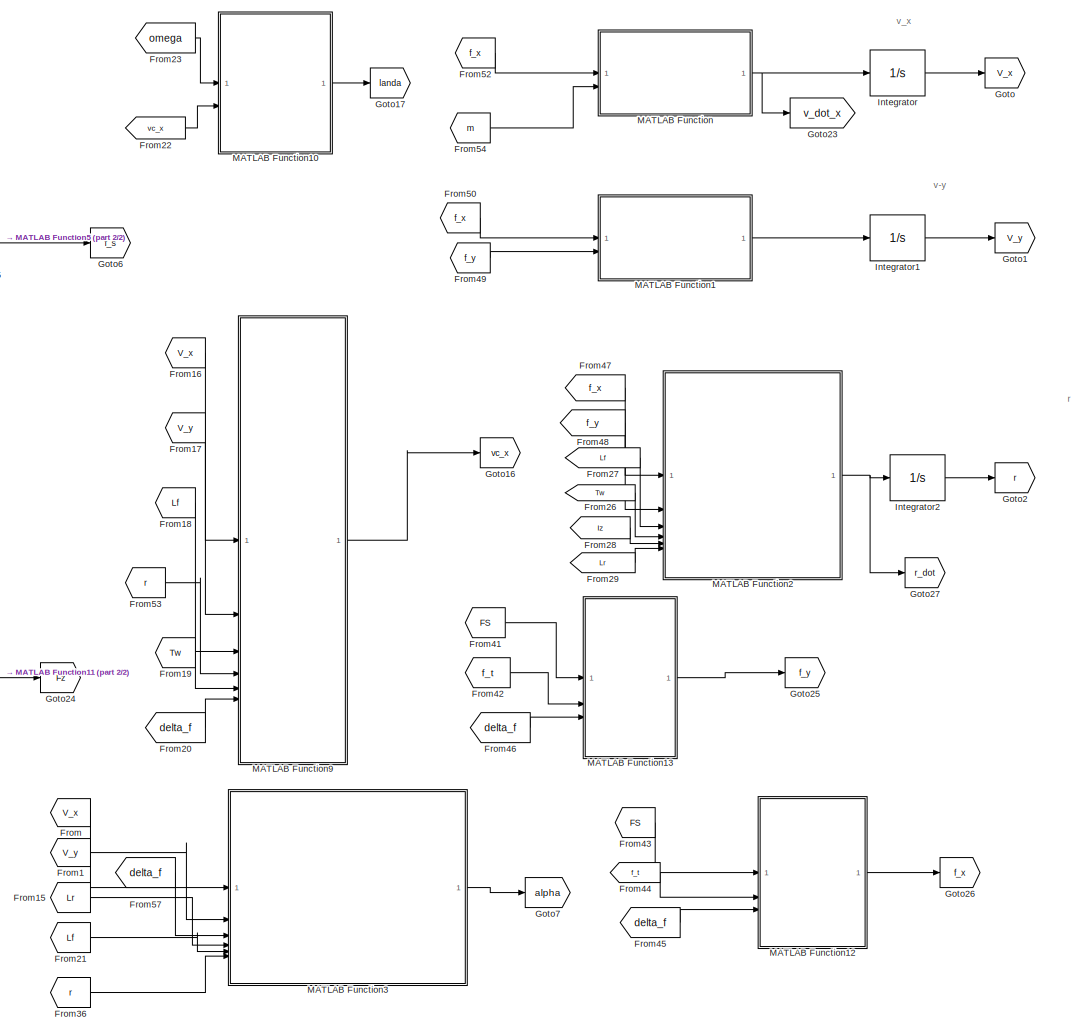
[diagram: root canvas - part 1/2, right side, full height]
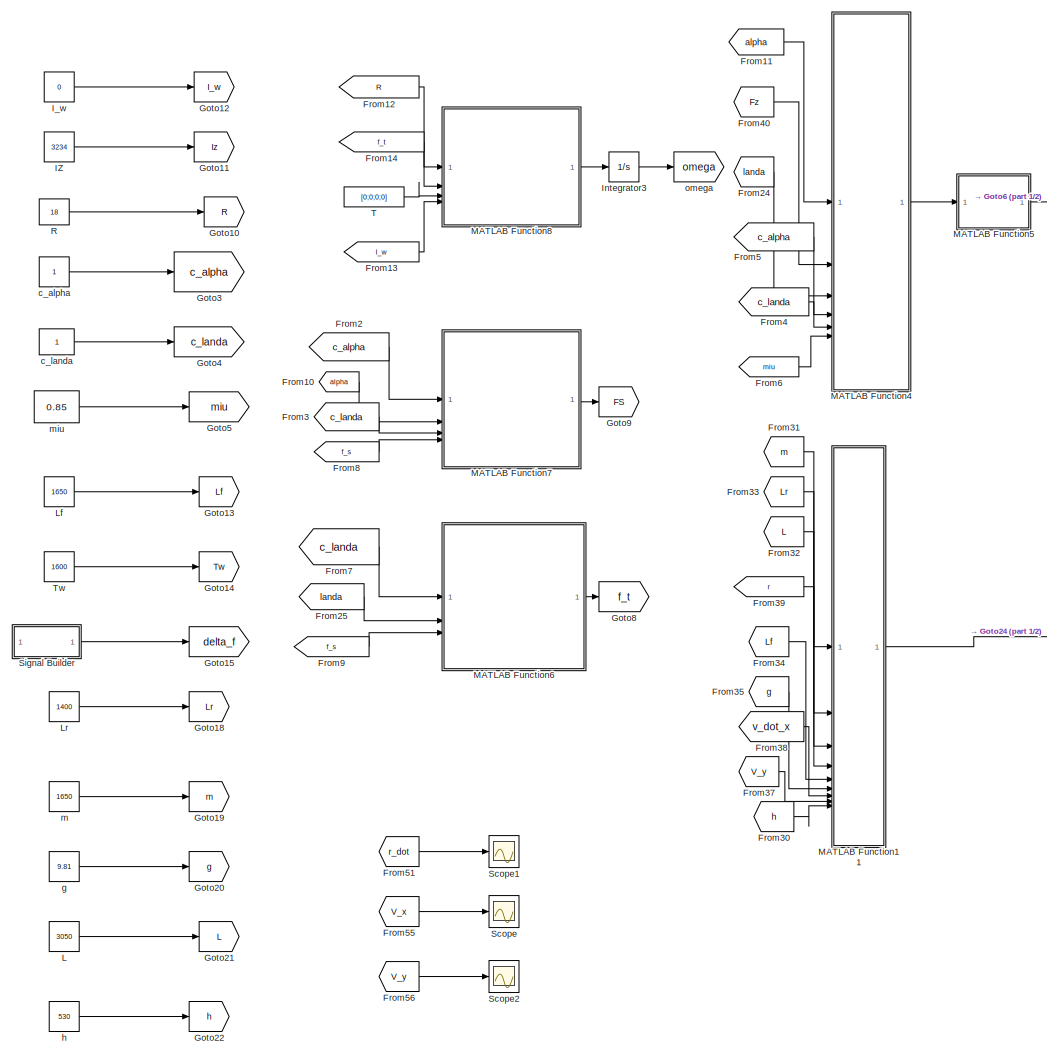
[diagram: root canvas - part 2/2, left side, full height]
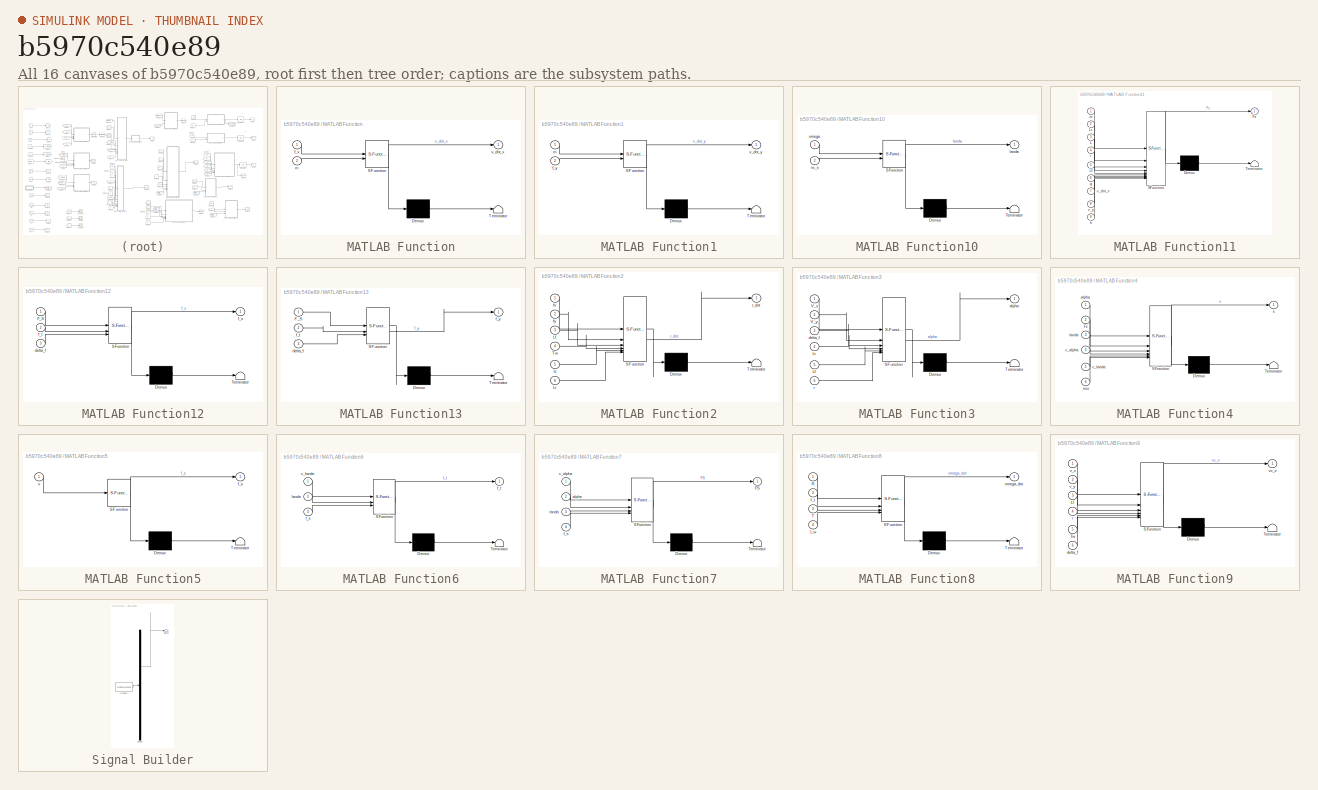
[diagram: thumbnail index - all 16 canvases of the model, root first then tree order]
MODEL slx_b5970c540e89
KIND model
CONFIG AbsTol = auto
CONFIG EnableMultiTasking = off
CONFIG FixedStep = auto
CONFIG MaxStep = auto
CONFIG MinStep = auto
CONFIG RelTol = 1e-3
CONFIG SampleTimeConstraint = Unconstrained
CONFIG SolverName = VariableStepAuto
CONFIG StartTime = 0.0
CONFIG StopTime = 10.0
BLOCK [From] From
  GotoTag = V_x
BLOCK [From] From1
  GotoTag = V_y
BLOCK [From] From10
  GotoTag = alpha
BLOCK [From] From11
  GotoTag = alpha
BLOCK [From] From12
  GotoTag = R
BLOCK [From] From13
  GotoTag = I_w
BLOCK [From] From14
  GotoTag = f_t
BLOCK [From] From15
  GotoTag = Lr
BLOCK [From] From16
  GotoTag = V_x
BLOCK [From] From17
  GotoTag = V_y
BLOCK [From] From18
  GotoTag = Lf
BLOCK [From] From19
  GotoTag = Tw
BLOCK [From] From2
  GotoTag = c_alpha
BLOCK [From] From20
  GotoTag = delta_f
BLOCK [From] From21
  GotoTag = Lf
BLOCK [From] From22
  GotoTag = vc_x
BLOCK [From] From23
  GotoTag = omega
BLOCK [From] From24
  GotoTag = landa
BLOCK [From] From25
  GotoTag = landa
BLOCK [From] From26
  GotoTag = Tw
BLOCK [From] From27
  GotoTag = Lf
BLOCK [From] From28
  GotoTag = Iz
BLOCK [From] From29
  GotoTag = Lr
BLOCK [From] From3
  GotoTag = c_landa
BLOCK [From] From30
  GotoTag = h
BLOCK [From] From31
  GotoTag = m
BLOCK [From] From32
  GotoTag = L
BLOCK [From] From33
  GotoTag = Lr
BLOCK [From] From34
  GotoTag = Lf
BLOCK [From] From35
  GotoTag = g
BLOCK [From] From36
  GotoTag = r
BLOCK [From] From37
  GotoTag = V_y
BLOCK [From] From38
  GotoTag = v_dot_x
BLOCK [From] From39
  GotoTag = r
BLOCK [From] From4
  GotoTag = c_landa
BLOCK [From] From40
  GotoTag = Fz
BLOCK [From] From41
  GotoTag = FS
BLOCK [From] From42
  GotoTag = f_t
BLOCK [From] From43
  GotoTag = FS
BLOCK [From] From44
  GotoTag = f_t
BLOCK [From] From45
  GotoTag = delta_f
BLOCK [From] From46
  GotoTag = delta_f
BLOCK [From] From47
  GotoTag = f_x
BLOCK [From] From48
  GotoTag = f_y
BLOCK [From] From49
  GotoTag = f_y
BLOCK [From] From5
  GotoTag = c_alpha
BLOCK [From] From50
  GotoTag = f_x
BLOCK [From] From51
  GotoTag = r_dot
BLOCK [From] From52
  GotoTag = f_x
BLOCK [From] From53
  GotoTag = r
BLOCK [From] From54
  GotoTag = m
BLOCK [From] From55
  GotoTag = V_x
BLOCK [From] From56
  GotoTag = V_y
BLOCK [From] From57
  GotoTag = delta_f
BLOCK [From] From6
  GotoTag = miu
BLOCK [From] From7
  GotoTag = c_landa
BLOCK [From] From8
  GotoTag = f_s
BLOCK [From] From9
  GotoTag = f_s
BLOCK [Goto] Goto
  GotoTag = V_x
BLOCK [Goto] Goto1
  GotoTag = V_y
BLOCK [Goto] Goto10
  GotoTag = R
BLOCK [Goto] Goto11
  GotoTag = Iz
BLOCK [Goto] Goto12
  GotoTag = I_w
BLOCK [Goto] Goto13
  GotoTag = Lf
BLOCK [Goto] Goto14
  GotoTag = Tw
BLOCK [Goto] Goto15
  GotoTag = delta_f
BLOCK [Goto] Goto16
  GotoTag = vc_x
BLOCK [Goto] Goto17
  GotoTag = landa
BLOCK [Goto] Goto18
  GotoTag = Lr
BLOCK [Goto] Goto19
  GotoTag = m
BLOCK [Goto] Goto2
  GotoTag = r
BLOCK [Goto] Goto20
  GotoTag = g
BLOCK [Goto] Goto21
  GotoTag = L
BLOCK [Goto] Goto22
  GotoTag = h
BLOCK [Goto] Goto23
  GotoTag = v_dot_x
BLOCK [Goto] Goto24
  GotoTag = Fz
BLOCK [Goto] Goto25
  GotoTag = f_y
BLOCK [Goto] Goto26
  GotoTag = f_x
BLOCK [Goto] Goto27
  GotoTag = r_dot
BLOCK [Goto] Goto3
  GotoTag = c_alpha
BLOCK [Goto] Goto4
  GotoTag = c_landa
BLOCK [Goto] Goto5
  GotoTag = miu
BLOCK [Goto] Goto6
  GotoTag = f_s
BLOCK [Goto] Goto7
  GotoTag = alpha
BLOCK [Goto] Goto8
  GotoTag = f_t
BLOCK [Goto] Goto9
  GotoTag = FS
BLOCK [Constant] IZ
  Value = 3234
BLOCK [Constant] I_w
  Value = 0
BLOCK [Integrator] Integrator
  InitialCondition = 70
BLOCK [Integrator] Integrator1
BLOCK [Integrator] Integrator2
  InitialCondition = 10
BLOCK [Integrator] Integrator3
  InitialCondition = [0;0;0;0]
BLOCK [Constant] L
  Value = 3050
BLOCK [Constant] Lf
  Value = 1650
BLOCK [Constant] Lr
  Value = 1400
BLOCK [SubSystem] MATLAB Function
  ErrorFcn = Stateflow.Translate.translate
  LibrarySourceBlock = simulink/User-Defined\nFunctions/MATLAB Function
  PermitHierarchicalResolution = ExplicitOnly
  SFBlockType = MATLAB Function
  TreatAsAtomicUnit = on
BLOCK [Demux] MATLAB Function/ Demux 
  Outputs = 1
BLOCK [S-Function] MATLAB Function/ SFunction 
  EnableBusSupport = on
  FunctionName = sf_sfun
  PortCounts = [2 2]
  SFcnIsStateOwnerBlock = off
  SFunctionDeploymentMode = off
  Tag = Stateflow S-Function 2
BLOCK [Terminator] MATLAB Function/ Terminator 
BLOCK [Inport] MATLAB Function/f_x
BLOCK [Inport] MATLAB Function/m
  Port = 2
BLOCK [Outport] MATLAB Function/v_dot_x
BLOCK [SubSystem] MATLAB Function1
  ErrorFcn = Stateflow.Translate.translate
  LibrarySourceBlock = simulink/User-Defined\nFunctions/MATLAB Function
  PermitHierarchicalResolution = ExplicitOnly
  SFBlockType = MATLAB Function
  TreatAsAtomicUnit = on
BLOCK [Demux] MATLAB Function1/ Demux 
  Outputs = 1
BLOCK [S-Function] MATLAB Function1/ SFunction 
  EnableBusSupport = on
  FunctionName = sf_sfun
  PortCounts = [2 2]
  SFcnIsStateOwnerBlock = off
  SFunctionDeploymentMode = off
  Tag = Stateflow S-Function 1
BLOCK [Terminator] MATLAB Function1/ Terminator 
BLOCK [Inport] MATLAB Function1/f_y
  Port = 2
BLOCK [Inport] MATLAB Function1/m
BLOCK [Outport] MATLAB Function1/v_dot_y
BLOCK [SubSystem] MATLAB Function10
  ErrorFcn = Stateflow.Translate.translate
  LibrarySourceBlock = simulink/User-Defined\nFunctions/MATLAB Function
  PermitHierarchicalResolution = ExplicitOnly
  SFBlockType = MATLAB Function
  TreatAsAtomicUnit = on
BLOCK [Demux] MATLAB Function10/ Demux 
  Outputs = 1
BLOCK [S-Function] MATLAB Function10/ SFunction 
  EnableBusSupport = on
  FunctionName = sf_sfun
  PortCounts = [2 2]
  SFcnIsStateOwnerBlock = off
  SFunctionDeploymentMode = off
  Tag = Stateflow S-Function 11
BLOCK [Terminator] MATLAB Function10/ Terminator 
BLOCK [Outport] MATLAB Function10/landa
BLOCK [Inport] MATLAB Function10/omega
BLOCK [Inport] MATLAB Function10/vc_x
  Port = 2
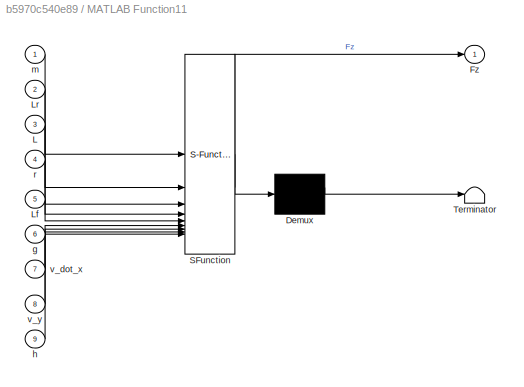
BLOCK [SubSystem] MATLAB Function11
  ErrorFcn = Stateflow.Translate.translate
  LibrarySourceBlock = simulink/User-Defined\nFunctions/MATLAB Function
  PermitHierarchicalResolution = ExplicitOnly
  SFBlockType = MATLAB Function
  TreatAsAtomicUnit = on
BLOCK [Demux] MATLAB Function11/ Demux 
  Outputs = 1
BLOCK [S-Function] MATLAB Function11/ SFunction 
  EnableBusSupport = on
  FunctionName = sf_sfun
  PortCounts = [9 2]
  SFcnIsStateOwnerBlock = off
  SFunctionDeploymentMode = off
  Tag = Stateflow S-Function 12
BLOCK [Terminator] MATLAB Function11/ Terminator 
BLOCK [Outport] MATLAB Function11/Fz
BLOCK [Inport] MATLAB Function11/L
  Port = 3
BLOCK [Inport] MATLAB Function11/Lf
  Port = 5
BLOCK [Inport] MATLAB Function11/Lr
  Port = 2
BLOCK [Inport] MATLAB Function11/g
  Port = 6
BLOCK [Inport] MATLAB Function11/h
  Port = 9
BLOCK [Inport] MATLAB Function11/m
BLOCK [Inport] MATLAB Function11/r
  Port = 4
BLOCK [Inport] MATLAB Function11/v_dot_x
  Port = 7
BLOCK [Inport] MATLAB Function11/v_y
  Port = 8
BLOCK [SubSystem] MATLAB Function12
  ErrorFcn = Stateflow.Translate.translate
  LibrarySourceBlock = simulink/User-Defined\nFunctions/MATLAB Function
  PermitHierarchicalResolution = ExplicitOnly
  SFBlockType = MATLAB Function
  TreatAsAtomicUnit = on
BLOCK [Demux] MATLAB Function12/ Demux 
  Outputs = 1
BLOCK [S-Function] MATLAB Function12/ SFunction 
  EnableBusSupport = on
  FunctionName = sf_sfun
  PortCounts = [3 2]
  SFcnIsStateOwnerBlock = off
  SFunctionDeploymentMode = off
  Tag = Stateflow S-Function 13
BLOCK [Terminator] MATLAB Function12/ Terminator 
BLOCK [Inport] MATLAB Function12/F_S
BLOCK [Inport] MATLAB Function12/delta_f
  Port = 3
BLOCK [Inport] MATLAB Function12/f_t
  Port = 2
BLOCK [Outport] MATLAB Function12/f_x
BLOCK [SubSystem] MATLAB Function13
  ErrorFcn = Stateflow.Translate.translate
  LibrarySourceBlock = simulink/User-Defined\nFunctions/MATLAB Function
  PermitHierarchicalResolution = ExplicitOnly
  SFBlockType = MATLAB Function
  TreatAsAtomicUnit = on
BLOCK [Demux] MATLAB Function13/ Demux 
  Outputs = 1
BLOCK [S-Function] MATLAB Function13/ SFunction 
  EnableBusSupport = on
  FunctionName = sf_sfun
  PortCounts = [3 2]
  SFcnIsStateOwnerBlock = off
  SFunctionDeploymentMode = off
  Tag = Stateflow S-Function 14
BLOCK [Terminator] MATLAB Function13/ Terminator 
BLOCK [Inport] MATLAB Function13/F_S
BLOCK [Inport] MATLAB Function13/delta_f
  Port = 3
BLOCK [Inport] MATLAB Function13/f_t
  Port = 2
BLOCK [Outport] MATLAB Function13/f_y
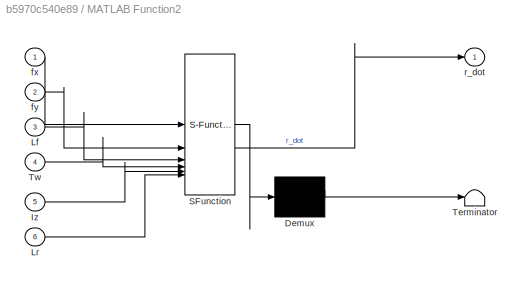
BLOCK [SubSystem] MATLAB Function2
  ErrorFcn = Stateflow.Translate.translate
  LibrarySourceBlock = simulink/User-Defined\nFunctions/MATLAB Function
  PermitHierarchicalResolution = ExplicitOnly
  SFBlockType = MATLAB Function
  TreatAsAtomicUnit = on
BLOCK [Demux] MATLAB Function2/ Demux 
  Outputs = 1
BLOCK [S-Function] MATLAB Function2/ SFunction 
  EnableBusSupport = on
  FunctionName = sf_sfun
  PortCounts = [6 2]
  SFcnIsStateOwnerBlock = off
  SFunctionDeploymentMode = off
  Tag = Stateflow S-Function 3
BLOCK [Terminator] MATLAB Function2/ Terminator 
BLOCK [Inport] MATLAB Function2/Iz
  Port = 5
BLOCK [Inport] MATLAB Function2/Lf
  Port = 3
BLOCK [Inport] MATLAB Function2/Lr
  Port = 6
BLOCK [Inport] MATLAB Function2/Tw
  Port = 4
BLOCK [Inport] MATLAB Function2/fx
BLOCK [Inport] MATLAB Function2/fy
  Port = 2
BLOCK [Outport] MATLAB Function2/r_dot
BLOCK [SubSystem] MATLAB Function3
  ErrorFcn = Stateflow.Translate.translate
  LibrarySourceBlock = simulink/User-Defined\nFunctions/MATLAB Function
  PermitHierarchicalResolution = ExplicitOnly
  SFBlockType = MATLAB Function
  TreatAsAtomicUnit = on
BLOCK [Demux] MATLAB Function3/ Demux 
  Outputs = 1
BLOCK [S-Function] MATLAB Function3/ SFunction 
  EnableBusSupport = on
  FunctionName = sf_sfun
  PortCounts = [6 2]
  SFcnIsStateOwnerBlock = off
  SFunctionDeploymentMode = off
  Tag = Stateflow S-Function 4
BLOCK [Terminator] MATLAB Function3/ Terminator 
BLOCK [Inport] MATLAB Function3/Lf
  Port = 5
BLOCK [Inport] MATLAB Function3/Lr
  Port = 4
BLOCK [Inport] MATLAB Function3/V_x
BLOCK [Inport] MATLAB Function3/V_y
  Port = 2
BLOCK [Outport] MATLAB Function3/alpha
BLOCK [Inport] MATLAB Function3/delta_f
  Port = 3
BLOCK [Inport] MATLAB Function3/r
  Port = 6
BLOCK [SubSystem] MATLAB Function4
  ErrorFcn = Stateflow.Translate.translate
  LibrarySourceBlock = simulink/User-Defined\nFunctions/MATLAB Function
  PermitHierarchicalResolution = ExplicitOnly
  SFBlockType = MATLAB Function
  TreatAsAtomicUnit = on
BLOCK [Demux] MATLAB Function4/ Demux 
  Outputs = 1
BLOCK [S-Function] MATLAB Function4/ SFunction 
  EnableBusSupport = on
  FunctionName = sf_sfun
  PortCounts = [6 2]
  SFcnIsStateOwnerBlock = off
  SFunctionDeploymentMode = off
  Tag = Stateflow S-Function 5
BLOCK [Terminator] MATLAB Function4/ Terminator 
BLOCK [Inport] MATLAB Function4/Fz
  Port = 2
BLOCK [Inport] MATLAB Function4/alpha
BLOCK [Inport] MATLAB Function4/c_alpha
  Port = 4
BLOCK [Inport] MATLAB Function4/c_landa
  Port = 5
BLOCK [Inport] MATLAB Function4/landa
  Port = 3
BLOCK [Inport] MATLAB Function4/miu
  Port = 6
BLOCK [Outport] MATLAB Function4/s
BLOCK [SubSystem] MATLAB Function5
  ErrorFcn = Stateflow.Translate.translate
  LibrarySourceBlock = simulink/User-Defined\nFunctions/MATLAB Function
  PermitHierarchicalResolution = ExplicitOnly
  SFBlockType = MATLAB Function
  TreatAsAtomicUnit = on
BLOCK [Demux] MATLAB Function5/ Demux 
  Outputs = 1
BLOCK [S-Function] MATLAB Function5/ SFunction 
  EnableBusSupport = on
  FunctionName = sf_sfun
  PortCounts = [1 2]
  SFcnIsStateOwnerBlock = off
  SFunctionDeploymentMode = off
  Tag = Stateflow S-Function 6
BLOCK [Terminator] MATLAB Function5/ Terminator 
BLOCK [Outport] MATLAB Function5/f_s
BLOCK [Inport] MATLAB Function5/s
BLOCK [SubSystem] MATLAB Function6
  ErrorFcn = Stateflow.Translate.translate
  LibrarySourceBlock = simulink/User-Defined\nFunctions/MATLAB Function
  PermitHierarchicalResolution = ExplicitOnly
  SFBlockType = MATLAB Function
  TreatAsAtomicUnit = on
BLOCK [Demux] MATLAB Function6/ Demux 
  Outputs = 1
BLOCK [S-Function] MATLAB Function6/ SFunction 
  EnableBusSupport = on
  FunctionName = sf_sfun
  PortCounts = [3 2]
  SFcnIsStateOwnerBlock = off
  SFunctionDeploymentMode = off
  Tag = Stateflow S-Function 7
BLOCK [Terminator] MATLAB Function6/ Terminator 
BLOCK [Inport] MATLAB Function6/c_landa
BLOCK [Inport] MATLAB Function6/f_s
  Port = 3
BLOCK [Outport] MATLAB Function6/f_t
BLOCK [Inport] MATLAB Function6/landa
  Port = 2
BLOCK [SubSystem] MATLAB Function7
  ErrorFcn = Stateflow.Translate.translate
  LibrarySourceBlock = simulink/User-Defined\nFunctions/MATLAB Function
  PermitHierarchicalResolution = ExplicitOnly
  SFBlockType = MATLAB Function
  TreatAsAtomicUnit = on
BLOCK [Demux] MATLAB Function7/ Demux 
  Outputs = 1
BLOCK [S-Function] MATLAB Function7/ SFunction 
  EnableBusSupport = on
  FunctionName = sf_sfun
  PortCounts = [4 2]
  SFcnIsStateOwnerBlock = off
  SFunctionDeploymentMode = off
  Tag = Stateflow S-Function 8
BLOCK [Terminator] MATLAB Function7/ Terminator 
BLOCK [Outport] MATLAB Function7/FS
BLOCK [Inport] MATLAB Function7/alpha
  Port = 2
BLOCK [Inport] MATLAB Function7/c_alpha
BLOCK [Inport] MATLAB Function7/f_s
  Port = 4
BLOCK [Inport] MATLAB Function7/landa
  Port = 3
BLOCK [SubSystem] MATLAB Function8
  ErrorFcn = Stateflow.Translate.translate
  LibrarySourceBlock = simulink/User-Defined\nFunctions/MATLAB Function
  PermitHierarchicalResolution = ExplicitOnly
  SFBlockType = MATLAB Function
  TreatAsAtomicUnit = on
BLOCK [Demux] MATLAB Function8/ Demux 
  Outputs = 1
BLOCK [S-Function] MATLAB Function8/ SFunction 
  EnableBusSupport = on
  FunctionName = sf_sfun
  PortCounts = [4 2]
  SFcnIsStateOwnerBlock = off
  SFunctionDeploymentMode = off
  Tag = Stateflow S-Function 9
BLOCK [Terminator] MATLAB Function8/ Terminator 
BLOCK [Inport] MATLAB Function8/I_w
  Port = 4
BLOCK [Inport] MATLAB Function8/R
BLOCK [Inport] MATLAB Function8/T
  Port = 3
BLOCK [Inport] MATLAB Function8/f_t
  Port = 2
BLOCK [Outport] MATLAB Function8/omega_dot
BLOCK [SubSystem] MATLAB Function9
  ErrorFcn = Stateflow.Translate.translate
  LibrarySourceBlock = simulink/User-Defined\nFunctions/MATLAB Function
  PermitHierarchicalResolution = ExplicitOnly
  SFBlockType = MATLAB Function
  TreatAsAtomicUnit = on
BLOCK [Demux] MATLAB Function9/ Demux 
  Outputs = 1
BLOCK [S-Function] MATLAB Function9/ SFunction 
  EnableBusSupport = on
  FunctionName = sf_sfun
  PortCounts = [6 2]
  SFcnIsStateOwnerBlock = off
  SFunctionDeploymentMode = off
  Tag = Stateflow S-Function 10
BLOCK [Terminator] MATLAB Function9/ Terminator 
BLOCK [Inport] MATLAB Function9/Lf
  Port = 3
BLOCK [Inport] MATLAB Function9/Tw
  Port = 5
BLOCK [Inport] MATLAB Function9/delta_f
  Port = 6
BLOCK [Inport] MATLAB Function9/r
  Port = 4
BLOCK [Inport] MATLAB Function9/v_x
BLOCK [Inport] MATLAB Function9/v_y
  Port = 2
BLOCK [Outport] MATLAB Function9/vc_x
BLOCK [Constant] R
  Value = 18
BLOCK [Scope] Scope
  Floating = off
  NumInputPorts = 1
  ScopeSpecificationString = Simulink.scopes.TimeScopeBlockCfg('CurrentConfiguration', extmgr.ConfigurationSet(extmgr.Configuration('Core','General UI',true),extmgr.Configuration('Core','Source UI',true),extmgr.Configuration('Sources','WiredSimulink',true),extmgr.Configuration('Visuals','Time Domain',true),extmgr.Configuration('Tools','Plot Navigation',true),extmgr.Configuration('Tools','Measurements',true,'Version','2022b'))...<+61ch>
BLOCK [Scope] Scope1
  Floating = off
  NumInputPorts = 1
  ScopeSpecificationString = Simulink.scopes.TimeScopeBlockCfg('CurrentConfiguration', extmgr.ConfigurationSet(extmgr.Configuration('Core','General UI',true),extmgr.Configuration('Core','Source UI',true),extmgr.Configuration('Sources','WiredSimulink',true,'DataLoggingVariableName','ScopeData1'),extmgr.Configuration('Visuals','Time Domain',true),extmgr.Configuration('Tools','Plot Navigation',true),extmgr.Configuration('Tools',...<+100ch>
BLOCK [Scope] Scope2
  Floating = off
  NumInputPorts = 1
  ScopeSpecificationString = Simulink.scopes.TimeScopeBlockCfg('CurrentConfiguration', extmgr.ConfigurationSet(extmgr.Configuration('Core','General UI',true),extmgr.Configuration('Core','Source UI',true),extmgr.Configuration('Sources','WiredSimulink',true,'DataLoggingVariableName','ScopeData2'),extmgr.Configuration('Visuals','Time Domain',true),extmgr.Configuration('Tools','Plot Navigation',true),extmgr.Configuration('Tools',...<+100ch>
BLOCK [SubSystem] Signal Builder
  ClipboardFcn = sigbuilder_block('clipboard');
  CloseFcn = sigbuilder_block('close');
  ContinueFcn = sigbuilder_block('continue');
  CopyFcn = sigbuilder_block('copy');
  DeleteFcn = sigbuilder_block('delete');
  LoadFcn = sigbuilder_block('load');
  MaskHideContents = on
  ModelCloseFcn = sigbuilder_block('modelClose');
  NameChangeFcn = sigbuilder_block('namechange');
  OpenFcn = sigbuilder_block('open',[437.6 199.2 550.4 400 ]);
  PauseFcn = sigbuilder_block('pause');
  PreSaveFcn = sigbuilder_block('preSave');
  StartFcn = sigbuilder_block('start');
  StopFcn = sigbuilder_block('stop');
  Tag = STV Subsys
BLOCK [Demux] Signal Builder/Demux
  DisplayOption = none
  Outputs = 1
  Tag = STV Demux
BLOCK [FromWorkspace] Signal Builder/FromWs
  Tag = STV FromWs
  VariableName = tuvar
BLOCK [Outport] Signal Builder/Signal 1
  Tag = STV Outport
BLOCK [Constant] T
  Value = [0;0;0;0]
BLOCK [Constant] Tw
  Value = 1600
BLOCK [Constant] c_alpha
BLOCK [Constant] c_landa
BLOCK [Constant] g
  Value = 9.81
BLOCK [Constant] h
  Value = 530
BLOCK [Constant] m
  Value = 1650
BLOCK [Constant] miu
  Value = 0.85
BLOCK [Goto] omega
  GotoTag = omega
ANNOTATION (root): r
ANNOTATION (root): v-y
ANNOTATION (root): v_x
LINE From10:1 -> MATLAB Function7:2
LINE From11:1 -> MATLAB Function4:1
LINE From12:1 -> MATLAB Function8:1
LINE From13:1 -> MATLAB Function8:4
LINE From14:1 -> MATLAB Function8:2
LINE From15:1 -> MATLAB Function3:4
LINE From16:1 -> MATLAB Function9:1
LINE From17:1 -> MATLAB Function9:2
LINE From18:1 -> MATLAB Function9:3
LINE From19:1 -> MATLAB Function9:5
LINE From1:1 -> MATLAB Function3:2
LINE From20:1 -> MATLAB Function9:6
LINE From21:1 -> MATLAB Function3:5
LINE From22:1 -> MATLAB Function10:2
LINE From23:1 -> MATLAB Function10:1
LINE From24:1 -> MATLAB Function4:3
LINE From25:1 -> MATLAB Function6:2
LINE From26:1 -> MATLAB Function2:4
LINE From27:1 -> MATLAB Function2:3
LINE From28:1 -> MATLAB Function2:5
LINE From29:1 -> MATLAB Function2:6
LINE From2:1 -> MATLAB Function7:1
LINE From30:1 -> MATLAB Function11:9
LINE From31:1 -> MATLAB Function11:1
LINE From32:1 -> MATLAB Function11:3
LINE From33:1 -> MATLAB Function11:2
LINE From34:1 -> MATLAB Function11:5
LINE From35:1 -> MATLAB Function11:6
LINE From36:1 -> MATLAB Function3:6
LINE From37:1 -> MATLAB Function11:8
LINE From38:1 -> MATLAB Function11:7
LINE From39:1 -> MATLAB Function11:4
LINE From3:1 -> MATLAB Function7:3
LINE From40:1 -> MATLAB Function4:2
LINE From41:1 -> MATLAB Function13:1
LINE From42:1 -> MATLAB Function13:2
LINE From43:1 -> MATLAB Function12:1
LINE From44:1 -> MATLAB Function12:2
LINE From45:1 -> MATLAB Function12:3
LINE From46:1 -> MATLAB Function13:3
LINE From47:1 -> MATLAB Function2:1
LINE From48:1 -> MATLAB Function2:2
LINE From49:1 -> MATLAB Function1:2
LINE From4:1 -> MATLAB Function4:5
LINE From50:1 -> MATLAB Function1:1
LINE From51:1 -> Scope1:1
LINE From52:1 -> MATLAB Function:1
LINE From53:1 -> MATLAB Function9:4
LINE From54:1 -> MATLAB Function:2
LINE From55:1 -> Scope:1
LINE From56:1 -> Scope2:1
LINE From57:1 -> MATLAB Function3:3
LINE From5:1 -> MATLAB Function4:4
LINE From6:1 -> MATLAB Function4:6
LINE From7:1 -> MATLAB Function6:1
LINE From8:1 -> MATLAB Function7:4
LINE From9:1 -> MATLAB Function6:3
LINE From:1 -> MATLAB Function3:1
LINE IZ:1 -> Goto11:1
LINE I_w:1 -> Goto12:1
LINE Integrator1:1 -> Goto1:1
LINE Integrator2:1 -> Goto2:1
LINE Integrator3:1 -> omega:1
LINE Integrator:1 -> Goto:1
LINE L:1 -> Goto21:1
LINE Lf:1 -> Goto13:1
LINE Lr:1 -> Goto18:1
LINE MATLAB Function10:1 -> Goto17:1
LINE MATLAB Function11:1 -> Goto24:1
LINE MATLAB Function12:1 -> Goto26:1
LINE MATLAB Function13:1 -> Goto25:1
LINE MATLAB Function1:1 -> Integrator1:1
NET MATLAB Function2:1 -> Goto27:1, Integrator2:1
LINE MATLAB Function3:1 -> Goto7:1
LINE MATLAB Function4:1 -> MATLAB Function5:1
LINE MATLAB Function5:1 -> Goto6:1
LINE MATLAB Function6:1 -> Goto8:1
LINE MATLAB Function7:1 -> Goto9:1
LINE MATLAB Function8:1 -> Integrator3:1
LINE MATLAB Function9:1 -> Goto16:1
NET MATLAB Function:1 -> Goto23:1, Integrator:1
LINE R:1 -> Goto10:1
LINE Signal Builder:1 -> Goto15:1
LINE T:1 -> MATLAB Function8:3
LINE Tw:1 -> Goto14:1
LINE c_alpha:1 -> Goto3:1
LINE c_landa:1 -> Goto4:1
LINE g:1 -> Goto20:1
LINE h:1 -> Goto22:1
LINE m:1 -> Goto19:1
LINE miu:1 -> Goto5:1
note: NET lines group one-source signal fan-out (src -> all destinations, sorted); 1:1 wires keep LINE
CHART MATLAB Function9 states=1 transitions=1
  STATE_LABEL 'eML_blk_kernel()'
  STATE_LABEL 'SCRIPT:\nfunction vc_x= vc_x(v_x,v_y,Lf,r,Tw,delta_f)\n\nvc_x = zeros(4,1);\nvc_x(1)=((v_x-((r*Tw)/2))*cos(delta_f))+((v_y)+r*Lf)*sin(delta_f);\nvc_x(2)=((v_x-((r*Tw)/2))*cos(delta_f))+((v_y)+r*Lf)*sin(delta_f);\nvc_x(3)=v_x-(r*Tw)/2;\nvc_x(4)=v_x-(r*Tw)/2;\n\nend\n'
CHART MATLAB Function10 states=1 transitions=1
  STATE_LABEL 'eML_blk_kernel()'
  STATE_LABEL 'SCRIPT:\nfunction landa = landa(omega,vc_x)\n\nlanda=zeros(4,1);\nlanda=(omega-vc_x)/vc_x;\n\nend\n'
CHART MATLAB Function11 states=1 transitions=1
  STATE_LABEL 'eML_blk_kernel()'
  STATE_LABEL 'SCRIPT:\nfunction Fz= Fz(m,Lr,L,r,Lf,g,v_dot_x,v_y,h)\n\nFz = zeros(4,1);\n\n\n        Fz(1)=((m*g)/2)*((Lr/L)-(v_dot_x-((v_y*r)/g*L)*h));\n\n        Fz(2)=((m*g)/2)*((Lr/L)-(v_dot_x-((v_y*r)/g*L)*h));\n\n        Fz(3)=((m*g)/2)*((Lf/L)-(v_dot_x-((v_y*r)/g*L)*h));\n        \n        Fz(3)=((m*g)/2)*((Lf/L)-(v_dot_x-((v_y*r)/g*L)*h));\n\n\n\n\n\nend\n'
CHART MATLAB Function12 states=1 transitions=1
  STATE_LABEL 'eML_blk_kernel()'
  STATE_LABEL 'SCRIPT:\nfunction f_x = fx(F_S,f_t,delta_f)\nf_x=zeros(4,1);\n%delta_r=0\nf_x(1)=f_t*cos(delta_f)-F_S*sin(delta_f);\nf_x(2)=f_t*cos(delta_f)-F_S*sin(delta_f);\nf_x(3)=f_t;\nf_x(4)=f_t;\n\nend\n'
CHART MATLAB Function13 states=1 transitions=1
  STATE_LABEL 'eML_blk_kernel()'
  STATE_LABEL 'SCRIPT:\nfunction f_y = f_y(F_S,f_t,delta_f)\nf_y=zeros(4,1);\n%delta_r=0\nf_y(1)=f_t*sin(delta_f)-F_S*cos(delta_f);\nf_y(2)=f_t*sin(delta_f)-F_S*cos(delta_f);\nf_y(3)=F_S;\nf_y(4)=F_S;\n\n\nend\n'
CHART MATLAB Function1 states=1 transitions=1
  STATE_LABEL 'eML_blk_kernel()'
  STATE_LABEL 'SCRIPT:\nfunction v_dot_y = y_2dot(m,f_y)\nv_dot_y=(f_y(1)+f_y(2)+f_y(3)+f_y(4))/m;\n\nend'
CHART MATLAB Function states=1 transitions=1
  STATE_LABEL 'eML_blk_kernel()'
  STATE_LABEL 'SCRIPT:\nfunction v_dot_x = x_2dot(f_x,m)\nv_dot_x=(f_x(1)+f_x(2)+f_x(3)+f_x(4))/m;\n\n\n\n\nend'
CHART MATLAB Function2 states=1 transitions=1
  STATE_LABEL 'eML_blk_kernel()'
  STATE_LABEL 'SCRIPT:\nfunction r_dot = r_dot(fx,fy,Lf,Tw,Iz,Lr)\nr_dot = (Lf*(fy(1)+fy(2))-Lr(fy(3)+fy(4))+(fx(1)+fx(3)-fx(2)-fx(4))*(Tw/2))/Iz;\nend'
CHART MATLAB Function3 states=1 transitions=1
  STATE_LABEL 'eML_blk_kernel()'
  STATE_LABEL 'SCRIPT:\nfunction alpha = alpha(V_x,V_y,delta_f,Lr,Lf,r)\n\n alpha = zeros(4,1);\n\nalpha(1) = delta_f - atan((Lf*r+V_y)/V_x);\n\nalpha(2) = delta_f - atan((Lf*r+V_y)/V_x);\n\nalpha(3) = -1*atan((Lr*r+V_y)/V_x);\n\nalpha(4) = -1*atan((Lr*r+V_y)/V_x);\n\nend\n'
CHART MATLAB Function4 states=1 transitions=1
  STATE_LABEL 'eML_blk_kernel()'
  STATE_LABEL 'SCRIPT:\nfunction s= S(alpha,Fz,landa,c_alpha,c_landa,miu)\n\ns= zeros(4,1);\n\nfor i=1:4\n\n    s = (miu*Fz(i)*(1+landa))/(2*(sqrt((c_landa*landa)^2+(c_alpha*tan(alpha)^2))));\n\n\nend\n'
CHART MATLAB Function5 states=1 transitions=1
  STATE_LABEL 'eML_blk_kernel()'
  STATE_LABEL 'SCRIPT:\nfunction f_s = f_s(s)\n f_s=zeros(4,1);\nfor i=1:1:4\n    if s(i)<1\n    f_s=(2-s(i))*s(i);\nelse \n    f_s=1;\nend\n\n\n\nend\n'
CHART MATLAB Function6 states=1 transitions=1
  STATE_LABEL 'eML_blk_kernel()'
  STATE_LABEL 'SCRIPT:\nfunction f_t = f_t(c_landa,landa,f_s)\nf_t=zeros(4,1);\n\nf_t=(c_landa*landa*f_s)/(1+landa);\n\nend\n'
CHART MATLAB Function7 states=1 transitions=1
  STATE_LABEL 'eML_blk_kernel()'
  STATE_LABEL 'SCRIPT:\nfunction FS= F_S(c_alpha,alpha,landa,f_s)\nFS=zeros(4,1);\nFS=(c_alpha*alpha)*f_s/(1+landa);\nend\n'
CHART MATLAB Function8 states=1 transitions=1
  STATE_LABEL 'eML_blk_kernel()'
  STATE_LABEL 'SCRIPT:\nfunction omega_dot= omega_dot(R,f_t,T,I_w) \n\nomega_dot= zeros(4,1);\nomega_dot=(T-(f_t*R))/I_w;\n\nend\n'
CHART  states=0 transitions=0
CHART  states=0 transitions=0
CHART  states=0 transitions=0
CHART  states=0 transitions=0
CHART  states=0 transitions=0
CHART  states=0 transitions=0
CHART  states=0 transitions=0
CHART  states=0 transitions=0
CHART  states=0 transitions=0
CHART  states=0 transitions=0
CHART  states=0 transitions=0
CHART  states=0 transitions=0
CHART  states=0 transitions=0
CHART  states=0 transitions=0
